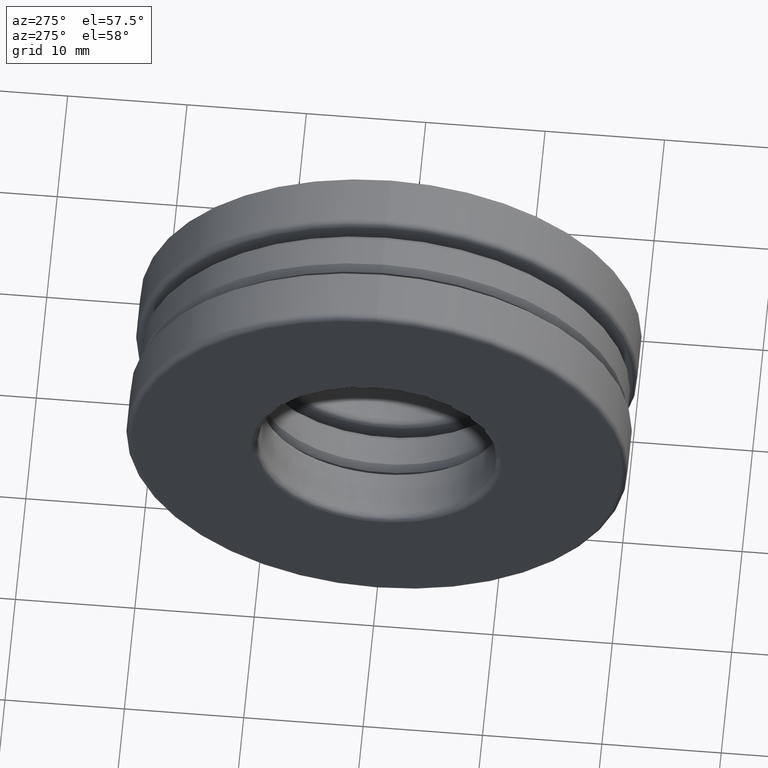
[diagram: clean part render]
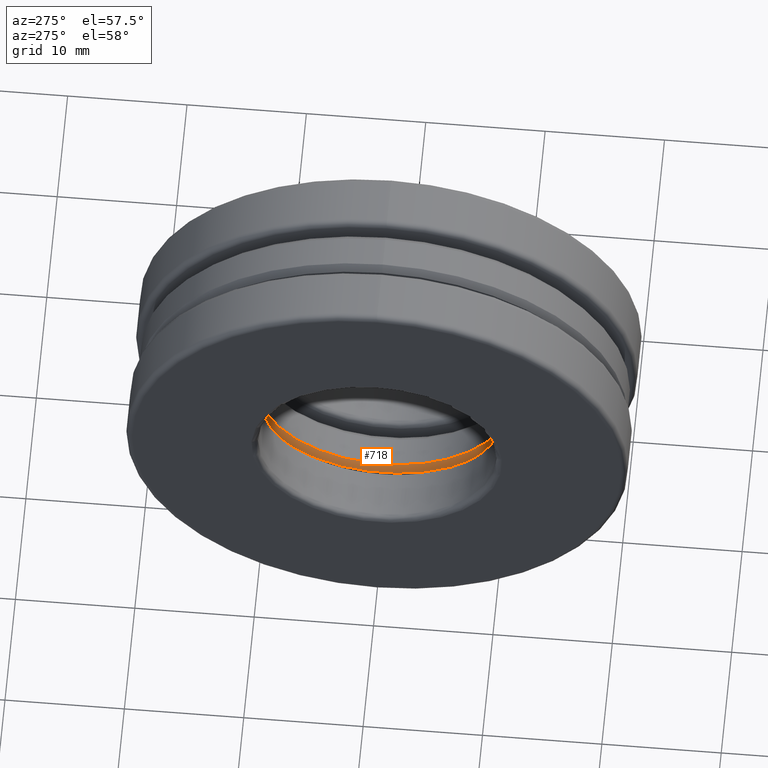
[diagram: same view with one face highlighted and labeled with its STEP entity id]
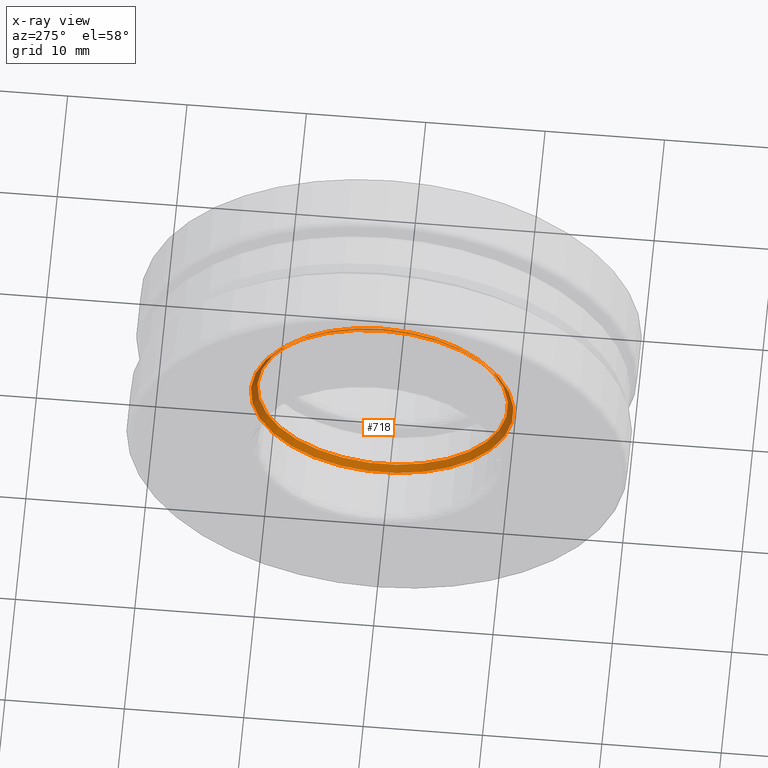
[diagram: x-ray of the same camera — body ghosted, the highlighted face saturated]
A machine part, auxiliary view. The second image highlights one B-rep face of the part: STEP entity #718.
The next image is the same camera in x-ray: the body ghosted, the highlighted face saturated — about 35% of this face is hidden behind the body in this view.
In plain terms, the highlighted conical surface has half-angle 45 deg.
Its self-contained STEP definition (entity closure, byte-faithful):
#6 = ORIENTED_EDGE ( 'NONE', *, *, #511, .T. ) ;
#47 = VERTEX_POINT ( 'NONE', #403 ) ;
#74 = CIRCLE ( 'NONE', #514, 0.4134999999999999800 ) ;
#76 = CARTESIAN_POINT ( 'NONE',  ( -0.06887499999999997800, 0.0000000000000000000, 0.0000000000000000000 ) ) ;
#149 = AXIS2_PLACEMENT_3D ( 'NONE', #76, #416, #456 ) ;
#187 = DIRECTION ( 'NONE',  ( 0.0000000000000000000, 0.0000000000000000000, 1.000000000000000000 ) ) ;
#362 = CONICAL_SURFACE ( 'NONE', #459, 0.4334999999999999400, 0.7853981633974479500 ) ;
#403 = CARTESIAN_POINT ( 'NONE',  ( -0.06887499999999997800, 0.0000000000000000000, 0.4334999999999999400 ) ) ;
#416 = DIRECTION ( 'NONE',  ( -1.000000000000000000, -0.0000000000000000000, -0.0000000000000000000 ) ) ;
#429 = EDGE_LOOP ( 'NONE', ( #6 ) ) ;
#456 = DIRECTION ( 'NONE',  ( 0.0000000000000000000, 0.0000000000000000000, 1.000000000000000000 ) ) ;
#459 = AXIS2_PLACEMENT_3D ( 'NONE', #765, #565, #187 ) ;
#464 = CARTESIAN_POINT ( 'NONE',  ( -0.04887499999999996700, 0.0000000000000000000, 0.4134999999999999800 ) ) ;
#509 = VERTEX_POINT ( 'NONE', #464 ) ;
#511 = EDGE_CURVE ( 'NONE', #47, #47, #576, .T. ) ;
#514 = AXIS2_PLACEMENT_3D ( 'NONE', #627, #620, #630 ) ;
#523 = FACE_OUTER_BOUND ( 'NONE', #429, .T. ) ;
#554 = ORIENTED_EDGE ( 'NONE', *, *, #714, .F. ) ;
#565 = DIRECTION ( 'NONE',  ( -1.000000000000000000, -0.0000000000000000000, -0.0000000000000000000 ) ) ;
#576 = CIRCLE ( 'NONE', #149, 0.4334999999999999400 ) ;
#620 = DIRECTION ( 'NONE',  ( -1.000000000000000000, -0.0000000000000000000, -0.0000000000000000000 ) ) ;
#627 = CARTESIAN_POINT ( 'NONE',  ( -0.04887499999999996700, 0.0000000000000000000, 0.0000000000000000000 ) ) ;
#630 = DIRECTION ( 'NONE',  ( 0.0000000000000000000, 0.0000000000000000000, 1.000000000000000000 ) ) ;
#714 = EDGE_CURVE ( 'NONE', #509, #509, #74, .T. ) ;
#718 = ADVANCED_FACE ( 'NONE', ( #778, #523 ), #362, .F. ) ;
#765 = CARTESIAN_POINT ( 'NONE',  ( -0.06887499999999997800, 0.0000000000000000000, 0.0000000000000000000 ) ) ;
#778 = FACE_BOUND ( 'NONE', #795, .T. ) ;
#795 = EDGE_LOOP ( 'NONE', ( #554 ) ) ;